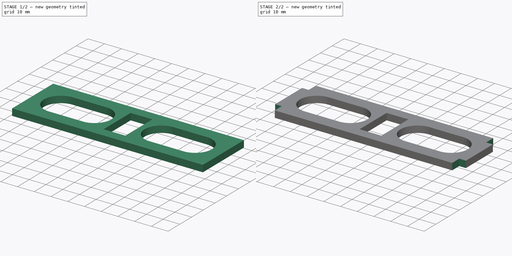
[diagram: build sequence overview — one tinted view per stage of 2, left to right]
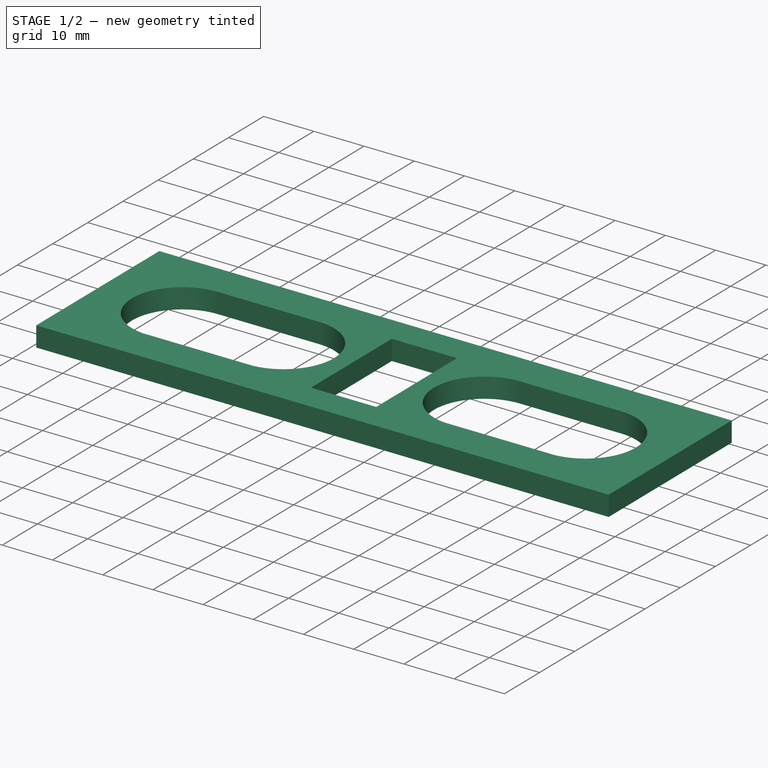
[diagram: stage 1 of 2 — iso view after this stage's code; geometry added in this stage tinted green]
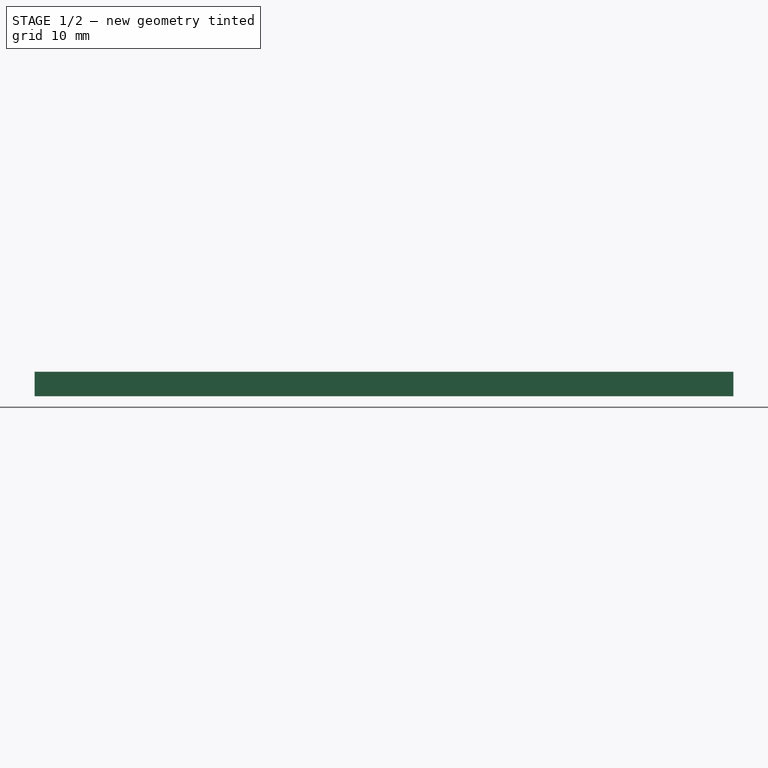
[diagram: stage 1 of 2 — front view after this stage's code; geometry added in this stage tinted green]
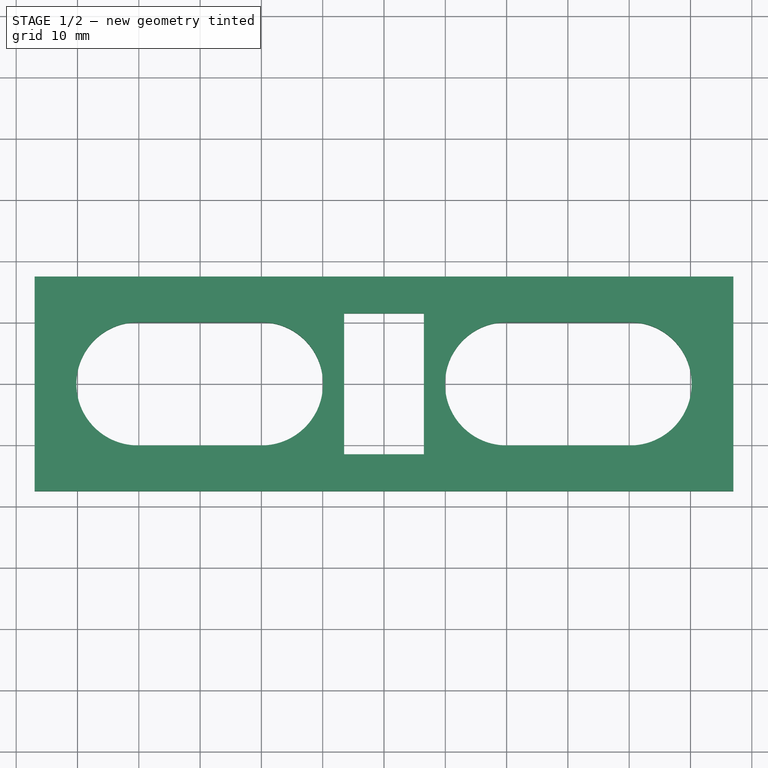
[diagram: stage 1 of 2 — top view after this stage's code; geometry added in this stage tinted green]
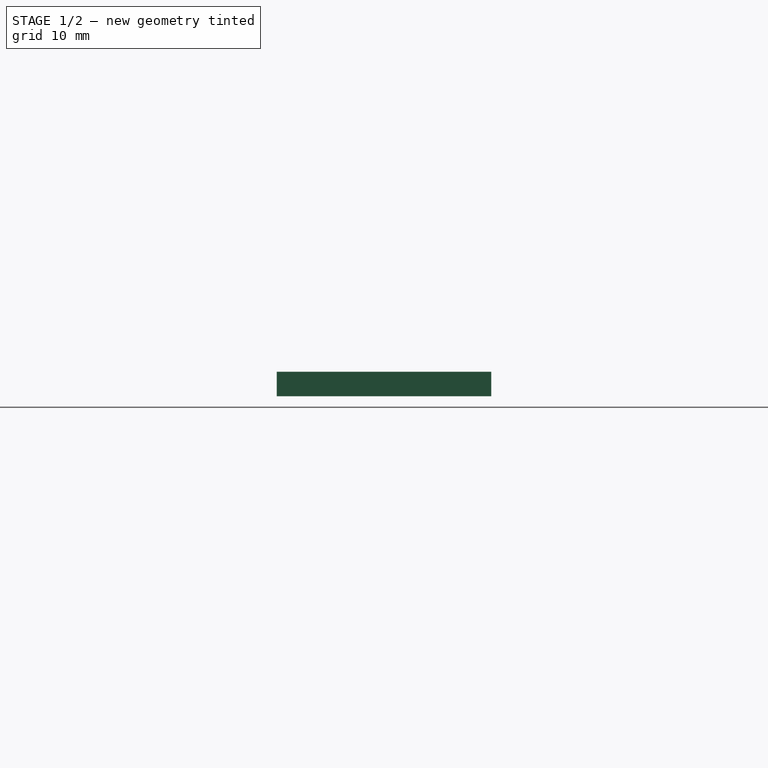
[diagram: stage 1 of 2 — right view after this stage's code; geometry added in this stage tinted green]
FCSTD DOCUMENT  (FreeCAD 0.21R33771 (Git))
Label: FRAME_SERVER
License: All rights reserved
LicenseURL: http://en.wikipedia.org/wiki/All_rights_reserved
objects: Sketcher::SketchObject×2, PartDesign::Pad×1, PartDesign::Pocket×1, PartDesign::Body×1
note: 7 computed .brp shape members not serialized (recipe doc carries the construction recipe); baked Part::Feature solids carry a one-line shape summary decoded from their .brp

FEATURE [Sketcher::SketchObject] Sketch
  FullyConstrained = false
  MapMode = 5
  Support = -> [XY_Plane]
  sketch-geometry (18):
    g0: LineSegment StartX=-57 StartY=-17.5 StartZ=0 EndX=-57 EndY=17.5 EndZ=0
    g1: LineSegment StartX=-57 StartY=17.5 StartZ=0 EndX=57 EndY=17.5 EndZ=0
    g2: LineSegment StartX=57 StartY=17.5 StartZ=0 EndX=57 EndY=-17.5 EndZ=0
    g3: LineSegment StartX=57 StartY=-17.5 StartZ=0 EndX=-57 EndY=-17.5 EndZ=0
    g4: GeomPoint X=0 Y=2e-16 Z=0
    g5: LineSegment StartX=-6.5 StartY=-11.5 StartZ=0 EndX=-6.5 EndY=11.5 EndZ=0
    g6: LineSegment StartX=-6.5 StartY=11.5 StartZ=0 EndX=6.5 EndY=11.5 EndZ=0
    g7: LineSegment StartX=6.5 StartY=11.5 StartZ=0 EndX=6.5 EndY=-11.5 EndZ=0
    g8: LineSegment StartX=6.5 StartY=-11.5 StartZ=0 EndX=-6.5 EndY=-11.5 EndZ=0
    g9: GeomPoint X=0 Y=2e-16 Z=0
    g10: ArcOfCircle CenterX=-40.1391 CenterY=0 CenterZ=0 NormalX=0 NormalY=0 NormalZ=1 AngleXU=0 Radius=10.0543 StartAngle=1.5708 EndAngle=4.71239
    g11: ArcOfCircle CenterX=-20 CenterY=0 CenterZ=0 NormalX=0 NormalY=0 NormalZ=1 AngleXU=0 Radius=10.0543 StartAngle=4.71239 EndAngle=7.85398
    g12: LineSegment StartX=-40.1391 StartY=-10.0543 StartZ=0 EndX=-20 EndY=-10.0543 EndZ=0
    g13: LineSegment StartX=-20 StartY=10.0543 StartZ=0 EndX=-40.1391 EndY=10.0543 EndZ=0
    g14: ArcOfCircle CenterX=20 CenterY=0 CenterZ=0 NormalX=0 NormalY=0 NormalZ=1 AngleXU=0 Radius=10.0543 StartAngle=1.5708 EndAngle=4.71239
    g15: ArcOfCircle CenterX=40.1391 CenterY=0 CenterZ=0 NormalX=0 NormalY=0 NormalZ=1 AngleXU=0 Radius=10.0543 StartAngle=4.71239 EndAngle=7.85398
    g16: LineSegment StartX=20 StartY=-10.0543 StartZ=0 EndX=40.1391 EndY=-10.0543 EndZ=0
    g17: LineSegment StartX=40.1391 StartY=10.0543 StartZ=0 EndX=20 EndY=10.0543 EndZ=0
  constraints (42):
    c: Coincident(g0,g1)
    c: Coincident(g1,g2)
    c: Coincident(g2,g3)
    c: Coincident(g3,g0)
    c: Horizontal(g1)
    c: Horizontal(g3)
    c: Vertical(g0)
    c: Vertical(g2)
    c: Symmetric(g1,g0,g4)
    c: Coincident(g4,g-1)
    c: DistanceY(g0,g0) = 35
    c: DistanceX(g3,g3) = 114
    c: Coincident(g5,g6)
    c: Coincident(g6,g7)
    c: Coincident(g7,g8)
    c: Coincident(g8,g5)
    c: Horizontal(g6)
    c: Horizontal(g8)
    c: Vertical(g5)
    c: Vertical(g7)
    c: Symmetric(g6,g5,g9)
    c: Coincident(g9,g4)
    c: DistanceX(g6,g6) = 13
    c: DistanceY(g5,g5) = 23
    c: Tangent(g10,g12) = -1.5708
    c: Tangent(g12,g11) = -1.5708
    c: Tangent(g11,g13) = -1.5708
    c: Tangent(g13,g10) = -1.5708
    c: Equal(g10,g11)
    c: PointOnObject(g10,g-1)
    c: PointOnObject(g11,g-1)
    c: Tangent(g14,g16) = -1.5708
    c: Tangent(g16,g15) = -1.5708
    c: Tangent(g15,g17) = -1.5708
    c: Tangent(g17,g14) = -1.5708
    c: Equal(g14,g15)
    c: PointOnObject(g14,g-1)
    c: PointOnObject(g15,g-1)
    c: Equal(g17,g13)
    c: Equal(g10,g14)
    c: DistanceX(g11,g4) = 20
    c: DistanceX(g4,g14) = 20
FEATURE [PartDesign::Pad] Pad
  Direction = (0,0,1)
  Length = 4
  Length2 = 10
  Profile = -> Sketch
  ReferenceAxis = -> Sketch [N_Axis]
  Type = 0
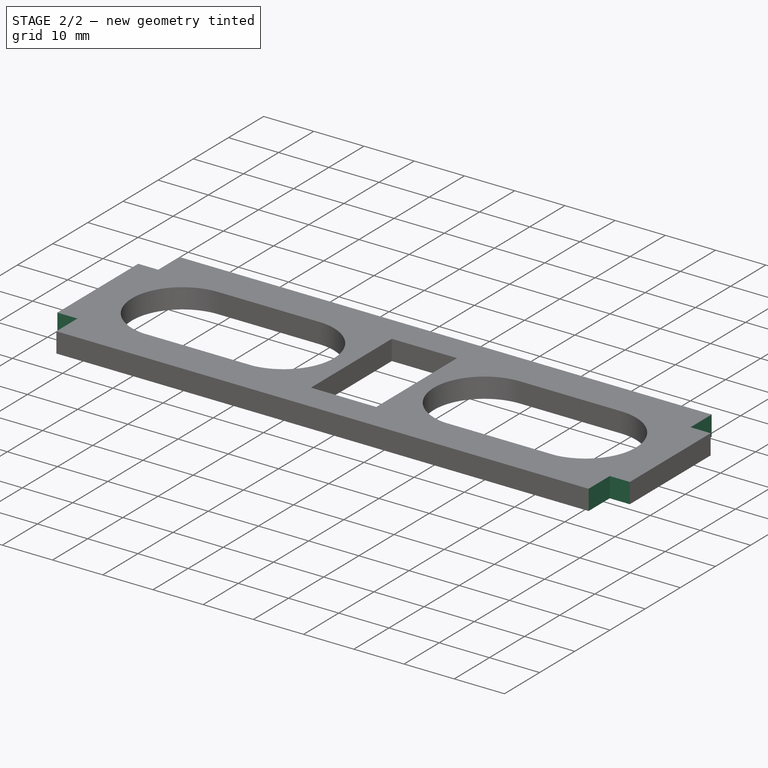
[diagram: stage 2 of 2 — iso view after this stage's code; geometry added in this stage tinted green]
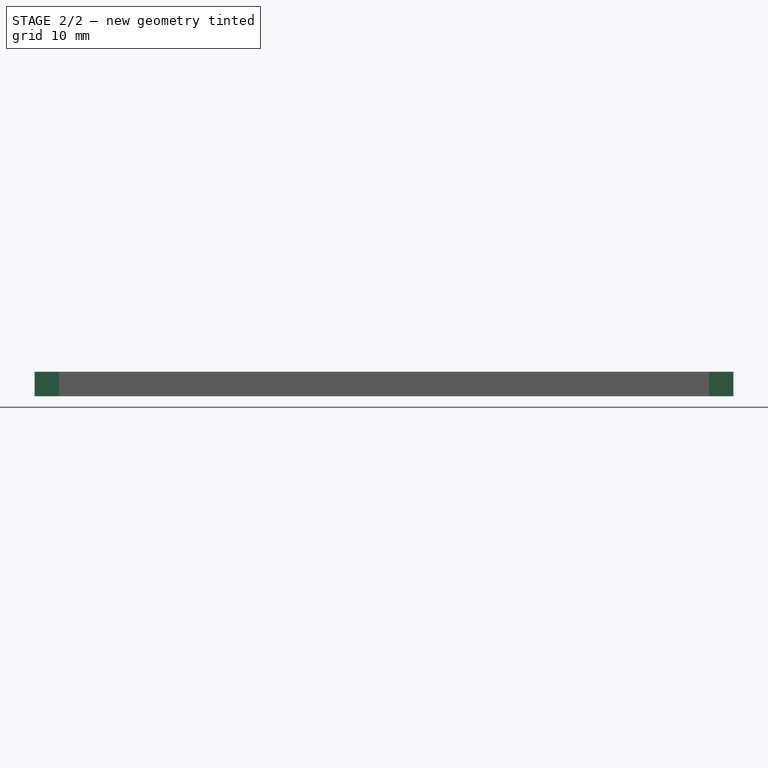
[diagram: stage 2 of 2 — front view after this stage's code; geometry added in this stage tinted green]
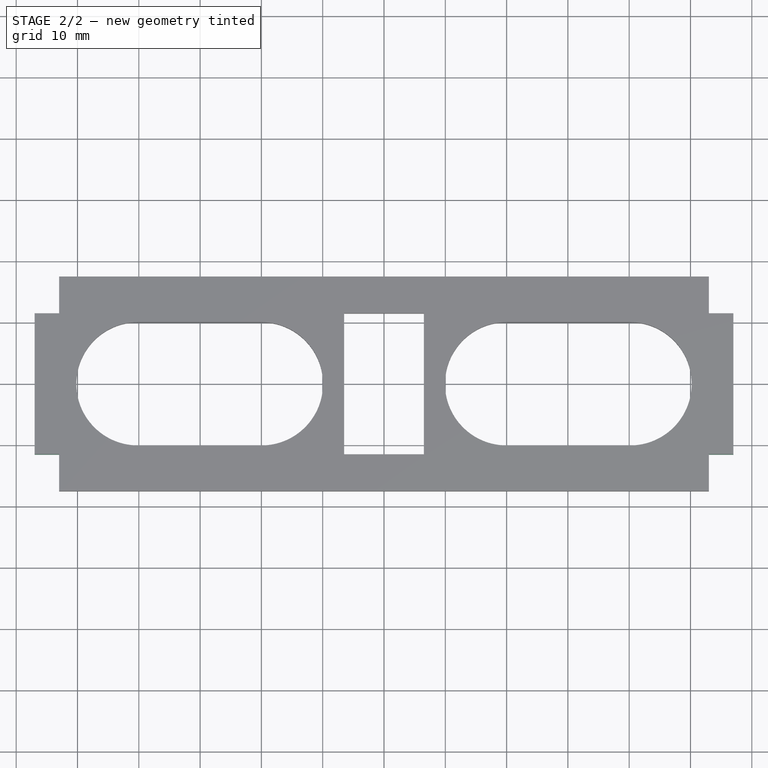
[diagram: stage 2 of 2 — top view after this stage's code; geometry added in this stage tinted green]
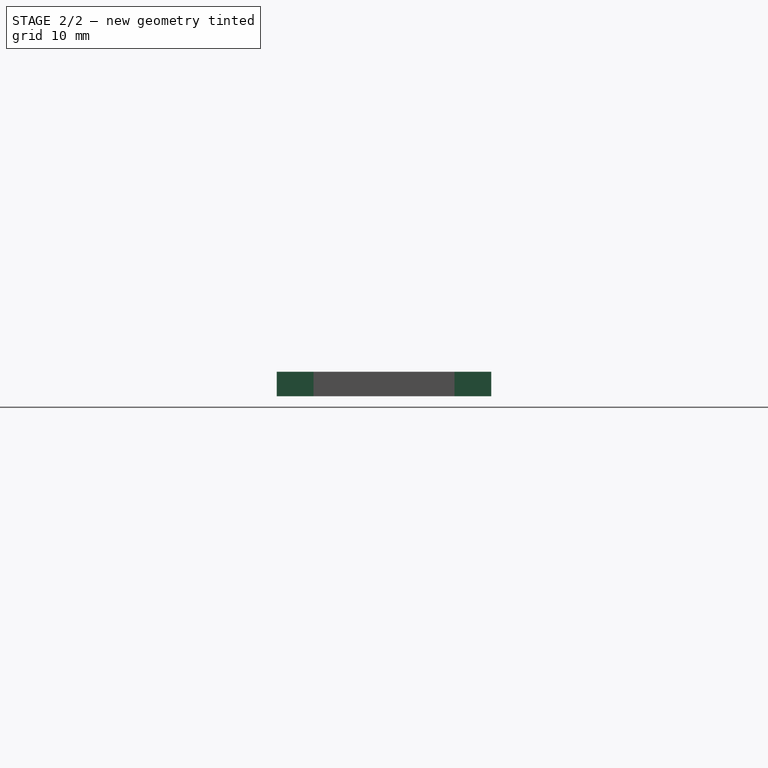
[diagram: stage 2 of 2 — right view after this stage's code; geometry added in this stage tinted green]
FEATURE [Sketcher::SketchObject] Sketch001
  ExternalGeometry = -> [Pad]
  FullyConstrained = true
  MapMode = 5
  Placement = pos=(0,0,4) rot=(0,0,1;0rad)
  Support = -> [Pad]
  sketch-geometry (16):
    g0: LineSegment StartX=-57 StartY=17.5 StartZ=0 EndX=-53 EndY=17.5 EndZ=0
    g1: LineSegment StartX=-53 StartY=17.5 StartZ=0 EndX=-53 EndY=11.5 EndZ=0
    g2: LineSegment StartX=-53 StartY=11.5 StartZ=0 EndX=-57 EndY=11.5 EndZ=0
    g3: LineSegment StartX=-57 StartY=11.5 StartZ=0 EndX=-57 EndY=17.5 EndZ=0
    g4: LineSegment StartX=-57 StartY=-17.5 StartZ=0 EndX=-53 EndY=-17.5 EndZ=0
    g5: LineSegment StartX=-53 StartY=-17.5 StartZ=0 EndX=-53 EndY=-11.5 EndZ=0
    g6: LineSegment StartX=-53 StartY=-11.5 StartZ=0 EndX=-57 EndY=-11.5 EndZ=0
    g7: LineSegment StartX=-57 StartY=-11.5 StartZ=0 EndX=-57 EndY=-17.5 EndZ=0
    g8: LineSegment StartX=57 StartY=-17.5 StartZ=0 EndX=53 EndY=-17.5 EndZ=0
    g9: LineSegment StartX=53 StartY=-17.5 StartZ=0 EndX=53 EndY=-11.5 EndZ=0
    g10: LineSegment StartX=53 StartY=-11.5 StartZ=0 EndX=57 EndY=-11.5 EndZ=0
    g11: LineSegment StartX=57 StartY=-11.5 StartZ=0 EndX=57 EndY=-17.5 EndZ=0
    g12: LineSegment StartX=57 StartY=17.5 StartZ=0 EndX=53 EndY=17.5 EndZ=0
    g13: LineSegment StartX=53 StartY=17.5 StartZ=0 EndX=53 EndY=11.5 EndZ=0
    g14: LineSegment StartX=53 StartY=11.5 StartZ=0 EndX=57 EndY=11.5 EndZ=0
    g15: LineSegment StartX=57 StartY=11.5 StartZ=0 EndX=57 EndY=17.5 EndZ=0
  constraints (45):
    c: Coincident(g0,g1)
    c: Coincident(g1,g2)
    c: Coincident(g2,g3)
    c: Coincident(g3,g0)
    c: Horizontal(g0)
    c: Horizontal(g2)
    c: Vertical(g1)
    c: Vertical(g3)
    c: Coincident(g0,g-3)
    c: Coincident(g4,g5)
    c: Coincident(g5,g6)
    c: Coincident(g6,g7)
    c: Coincident(g7,g4)
    c: Horizontal(g4)
    c: Horizontal(g6)
    c: Vertical(g5)
    c: Vertical(g7)
    c: Coincident(g4,g-3)
    c: Coincident(g8,g9)
    c: Coincident(g9,g10)
    c: Coincident(g10,g11)
    c: Coincident(g11,g8)
    c: Horizontal(g8)
    c: Horizontal(g10)
    c: Vertical(g9)
    c: Vertical(g11)
    c: Coincident(g8,g-4)
    c: Coincident(g12,g13)
    c: Coincident(g13,g14)
    c: Coincident(g14,g15)
    c: Coincident(g15,g12)
    c: Horizontal(g12)
    c: Horizontal(g14)
    c: Vertical(g13)
    c: Vertical(g15)
    c: Coincident(g12,g-4)
    c: Vertical(g1,g5)
    c: Horizontal(g1,g13)
    c: Vertical(g13,g9)
    c: Equal(g0,g12)
    c: Equal(g13,g9)
    c: Equal(g5,g9)
    c: DistanceX(g0,g0) = 4
    c: DistanceY(g3,g3) = 6
    c: DistanceY(g6,g2) = 23
FEATURE [PartDesign::Pocket] Pocket
  BaseFeature = -> Pad
  Direction = (0,0,-1)
  Length = 5
  Length2 = 5
  Profile = -> Sketch001
  ReferenceAxis = -> Sketch001 [N_Axis]
  Type = 0
FEATURE [PartDesign::Body] Body
  Group = -> [Sketch,Pad,Sketch001,Pocket]
  Origin = -> Origin
  Tip = -> Pocket
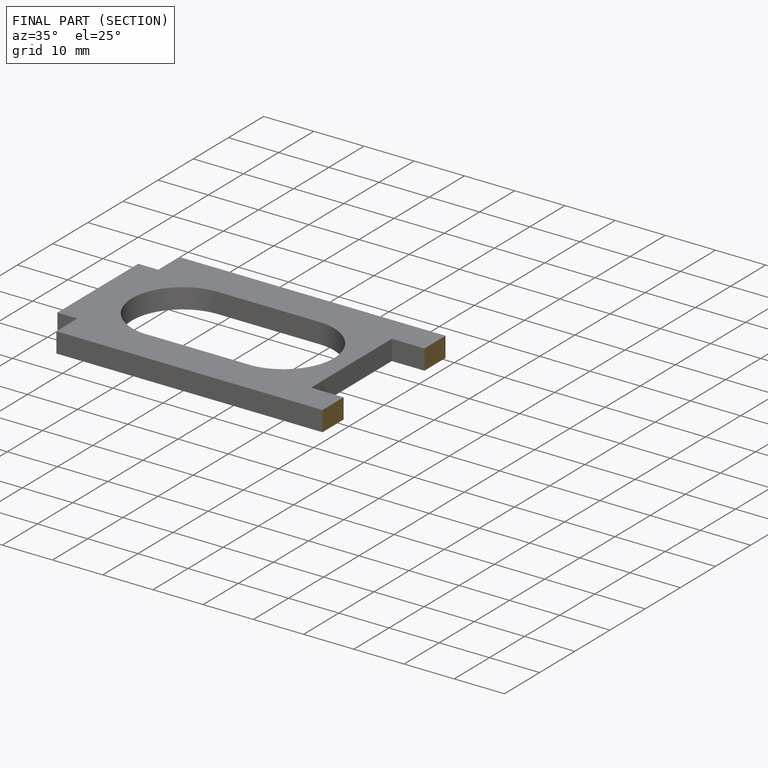
[diagram: finished part — half-section view (interior)]
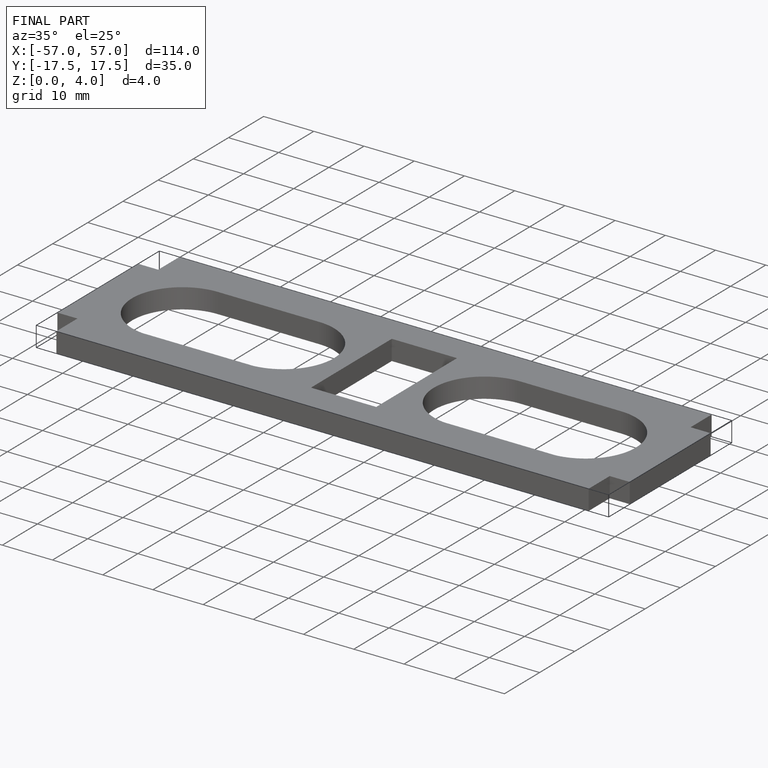
[diagram: finished part — iso view with bounding-box wireframe]
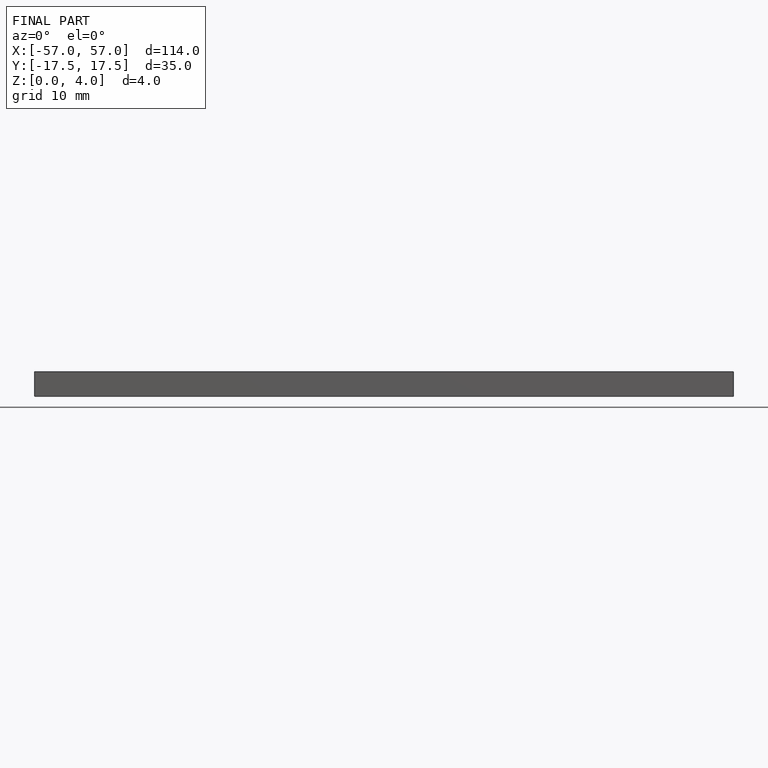
[diagram: finished part — front view with bounding-box wireframe]
